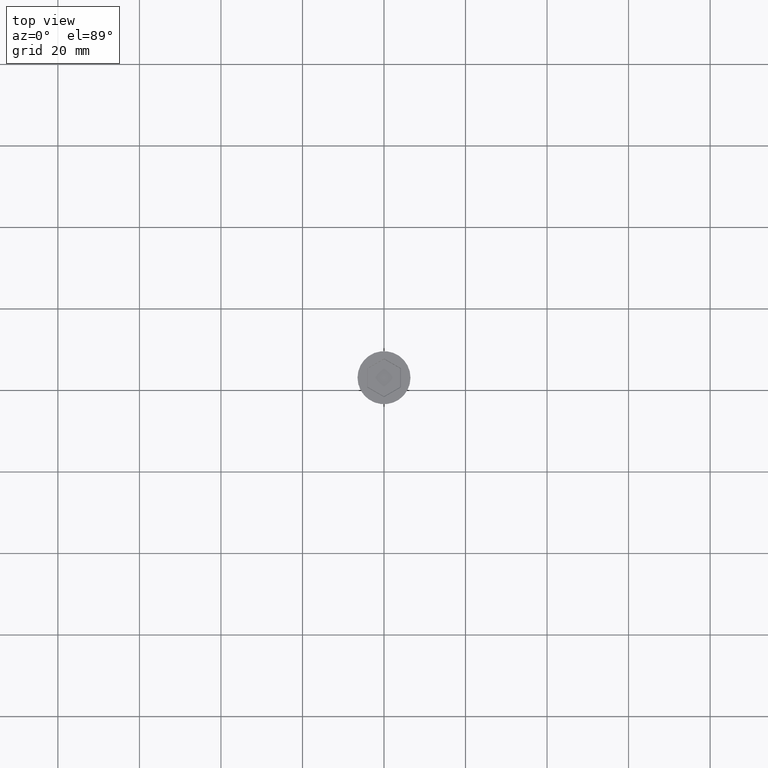
[diagram: clean part render]
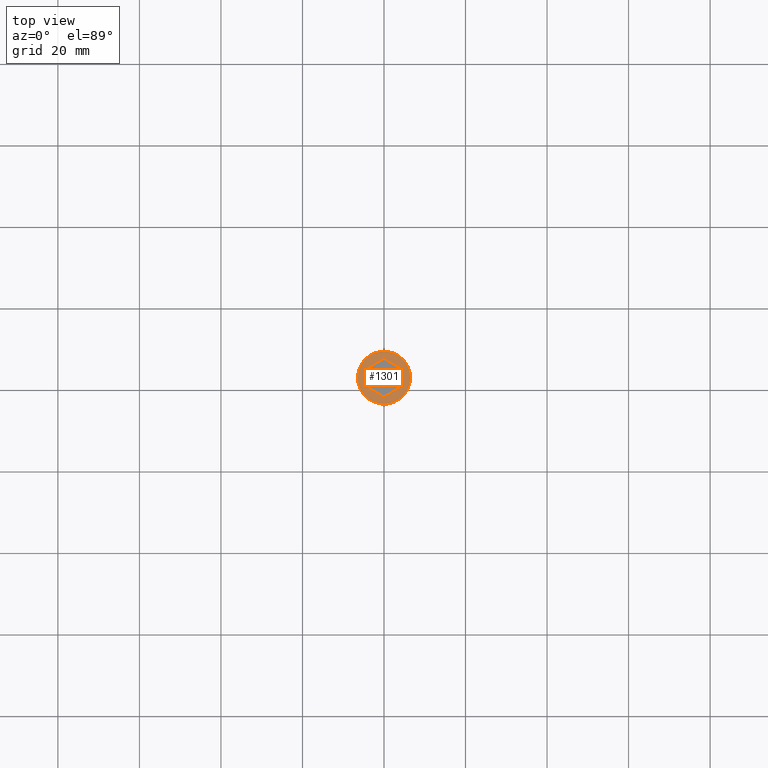
[diagram: same view with one face highlighted and labeled with its STEP entity id]
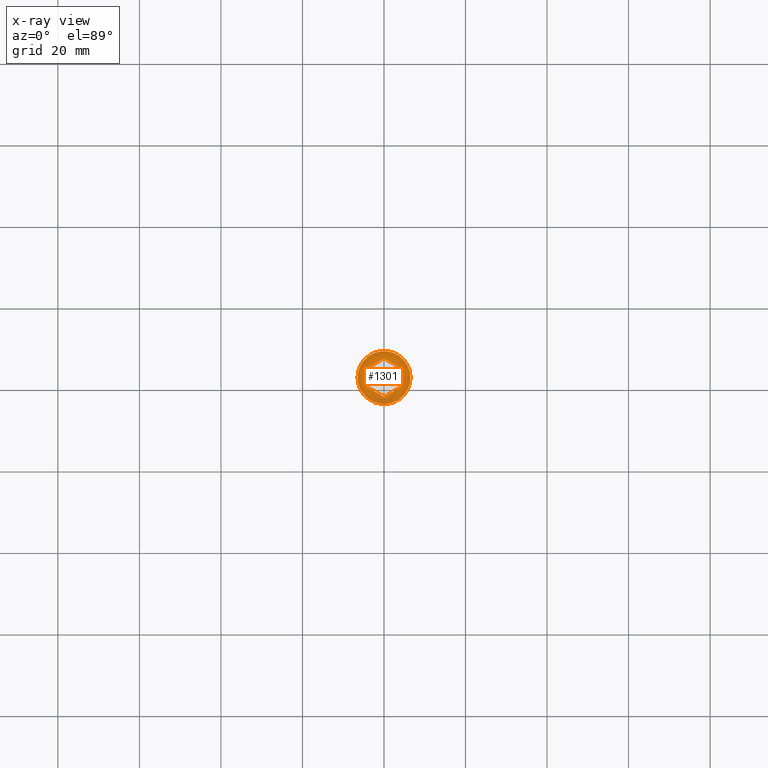
[diagram: x-ray of the same camera — body ghosted, the highlighted face saturated]
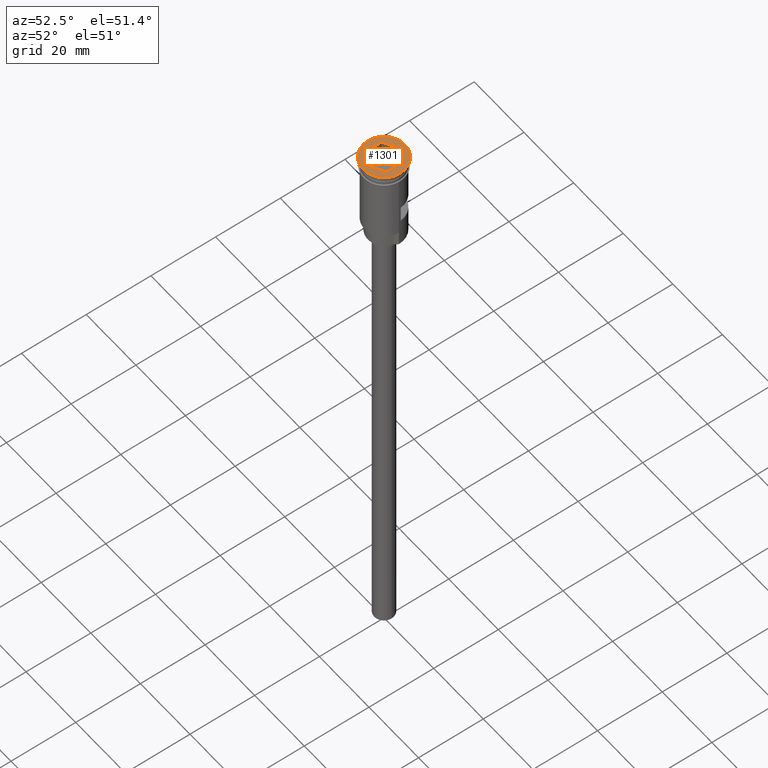
[diagram: same view with one face highlighted and labeled with its STEP entity id]
A machine part, top view. The second image highlights one B-rep face of the part: STEP entity #1301.
The next image is the same camera in x-ray: the body ghosted, the highlighted face saturated — about 0% of this face is hidden behind the body in this view.
A second angle (auxiliary view) of the same face is appended — the face is thin or edge-on in the first view.
In plain terms, the highlighted planar face has unit normal (0, -0, 1).
Its self-contained STEP definition (entity closure, byte-faithful):
#15 = VECTOR ( 'NONE', #495, 1000.000000000000000 ) ;
#73 = EDGE_CURVE ( 'NONE', #900, #196, #276, .T. ) ;
#125 = CARTESIAN_POINT ( 'NONE',  ( 6.297488933682852254E-16, -4.734272207354889517, 0.000000000000000000 ) ) ;
#168 = EDGE_CURVE ( 'NONE', #1232, #900, #1068, .T. ) ;
#173 = CARTESIAN_POINT ( 'NONE',  ( 4.049999999999982947, 2.396003617136917896, 0.000000000000000000 ) ) ;
#179 = ORIENTED_EDGE ( 'NONE', *, *, #565, .T. ) ;
#196 = VERTEX_POINT ( 'NONE', #1207 ) ;
#201 = EDGE_CURVE ( 'NONE', #1590, #459, #445, .T. ) ;
#227 = ORIENTED_EDGE ( 'NONE', *, *, #1077, .T. ) ;
#231 = PLANE ( 'NONE',  #1427 ) ;
#276 = LINE ( 'NONE', #899, #412 ) ;
#299 = CARTESIAN_POINT ( 'NONE',  ( 4.099999999999965006, -2.367136103677444314, 0.000000000000000000 ) ) ;
#301 = DIRECTION ( 'NONE',  ( 0.8660254037844385966, 0.5000000000000001110, 0.000000000000000000 ) ) ;
#352 = DIRECTION ( 'NONE',  ( -0.8660254037844388186, 0.4999999999999997780, 0.000000000000000000 ) ) ;
#367 = VERTEX_POINT ( 'NONE', #125 ) ;
#399 = VERTEX_POINT ( 'NONE', #1121 ) ;
#412 = VECTOR ( 'NONE', #301, 1000.000000000000114 ) ;
#445 = CIRCLE ( 'NONE', #930, 6.500000000000000000 ) ;
#446 = CARTESIAN_POINT ( 'NONE',  ( 0.04999999999998334249, -4.705404693895418156, 0.000000000000000000 ) ) ;
#459 = VERTEX_POINT ( 'NONE', #1479 ) ;
#469 = DIRECTION ( 'NONE',  ( 1.000000000000000000, 0.000000000000000000, 0.000000000000000000 ) ) ;
#495 = DIRECTION ( 'NONE',  ( 0.000000000000000000, -1.000000000000000000, -0.000000000000000000 ) ) ;
#535 = CARTESIAN_POINT ( 'NONE',  ( -4.099999999999965006, 2.367136103677443870, 0.000000000000000000 ) ) ;
#565 = EDGE_CURVE ( 'NONE', #922, #367, #1453, .T. ) ;
#633 = CARTESIAN_POINT ( 'NONE',  ( 0.000000000000000000, 0.000000000000000000, 0.000000000000000000 ) ) ;
#686 = DIRECTION ( 'NONE',  ( 0.000000000000000000, 1.000000000000000000, 0.000000000000000000 ) ) ;
#690 = EDGE_LOOP ( 'NONE', ( #1095, #1448, #1228, #1092, #179, #1215 ) ) ;
#734 = AXIS2_PLACEMENT_3D ( 'NONE', #633, #1231, #1374 ) ;
#766 = LINE ( 'NONE', #887, #15 ) ;
#788 = LINE ( 'NONE', #173, #1066 ) ;
#805 = EDGE_CURVE ( 'NONE', #399, #922, #766, .T. ) ;
#840 = CARTESIAN_POINT ( 'NONE',  ( 0.000000000000000000, 0.000000000000000000, 0.000000000000000000 ) ) ;
#867 = CARTESIAN_POINT ( 'NONE',  ( -6.500000000000000000, 7.960204194457795477E-16, 0.000000000000000000 ) ) ;
#887 = CARTESIAN_POINT ( 'NONE',  ( 4.099999999999965006, -2.309401076758503368, 0.000000000000000000 ) ) ;
#899 = CARTESIAN_POINT ( 'NONE',  ( -0.04999999999998216288, 4.705404693895418156, 0.000000000000000000 ) ) ;
#900 = VERTEX_POINT ( 'NONE', #535 ) ;
#922 = VERTEX_POINT ( 'NONE', #299 ) ;
#930 = AXIS2_PLACEMENT_3D ( 'NONE', #1434, #1078, #1582 ) ;
#933 = VECTOR ( 'NONE', #1318, 1000.000000000000114 ) ;
#945 = FACE_OUTER_BOUND ( 'NONE', #1306, .T. ) ;
#1000 = EDGE_CURVE ( 'NONE', #367, #1232, #1473, .T. ) ;
#1066 = VECTOR ( 'NONE', #1533, 1000.000000000000000 ) ;
#1068 = LINE ( 'NONE', #1574, #1272 ) ;
#1077 = EDGE_CURVE ( 'NONE', #459, #1590, #1270, .T. ) ;
#1078 = DIRECTION ( 'NONE',  ( -0.000000000000000000, -0.000000000000000000, 1.000000000000000000 ) ) ;
#1092 = ORIENTED_EDGE ( 'NONE', *, *, #805, .T. ) ;
#1095 = ORIENTED_EDGE ( 'NONE', *, *, #168, .T. ) ;
#1121 = CARTESIAN_POINT ( 'NONE',  ( 4.099999999999965006, 2.367136103677447423, 0.000000000000000000 ) ) ;
#1197 = CARTESIAN_POINT ( 'NONE',  ( -4.049999999999982059, -2.396003617136916564, 0.000000000000000000 ) ) ;
#1198 = VECTOR ( 'NONE', #352, 1000.000000000000114 ) ;
#1207 = CARTESIAN_POINT ( 'NONE',  ( 2.171479865133627081E-15, 4.734272207354890405, 0.000000000000000000 ) ) ;
#1215 = ORIENTED_EDGE ( 'NONE', *, *, #1000, .T. ) ;
#1225 = CARTESIAN_POINT ( 'NONE',  ( -4.099999999999965006, -2.367136103677445202, 0.000000000000000000 ) ) ;
#1228 = ORIENTED_EDGE ( 'NONE', *, *, #1362, .T. ) ;
#1231 = DIRECTION ( 'NONE',  ( -0.000000000000000000, -0.000000000000000000, 1.000000000000000000 ) ) ;
#1232 = VERTEX_POINT ( 'NONE', #1225 ) ;
#1270 = CIRCLE ( 'NONE', #734, 6.500000000000000000 ) ;
#1272 = VECTOR ( 'NONE', #686, 1000.000000000000000 ) ;
#1301 = ADVANCED_FACE ( 'NONE', ( #1579, #945 ), #231, .T. ) ;
#1306 = EDGE_LOOP ( 'NONE', ( #227, #1425 ) ) ;
#1318 = DIRECTION ( 'NONE',  ( -0.8660254037844385966, -0.5000000000000001110, 0.000000000000000000 ) ) ;
#1328 = DIRECTION ( 'NONE',  ( 0.000000000000000000, -0.000000000000000000, 1.000000000000000000 ) ) ;
#1362 = EDGE_CURVE ( 'NONE', #196, #399, #788, .T. ) ;
#1374 = DIRECTION ( 'NONE',  ( 1.000000000000000000, 0.000000000000000000, 0.000000000000000000 ) ) ;
#1425 = ORIENTED_EDGE ( 'NONE', *, *, #201, .T. ) ;
#1427 = AXIS2_PLACEMENT_3D ( 'NONE', #840, #1328, #469 ) ;
#1434 = CARTESIAN_POINT ( 'NONE',  ( 0.000000000000000000, 0.000000000000000000, 0.000000000000000000 ) ) ;
#1448 = ORIENTED_EDGE ( 'NONE', *, *, #73, .T. ) ;
#1453 = LINE ( 'NONE', #446, #933 ) ;
#1473 = LINE ( 'NONE', #1197, #1198 ) ;
#1479 = CARTESIAN_POINT ( 'NONE',  ( 6.500000000000000000, 0.000000000000000000, 0.000000000000000000 ) ) ;
#1533 = DIRECTION ( 'NONE',  ( 0.8660254037844387076, -0.4999999999999998890, 0.000000000000000000 ) ) ;
#1574 = CARTESIAN_POINT ( 'NONE',  ( -4.099999999999965006, 2.309401076758502480, 0.000000000000000000 ) ) ;
#1579 = FACE_BOUND ( 'NONE', #690, .T. ) ;
#1582 = DIRECTION ( 'NONE',  ( 1.000000000000000000, 0.000000000000000000, 0.000000000000000000 ) ) ;
#1590 = VERTEX_POINT ( 'NONE', #867 ) ;